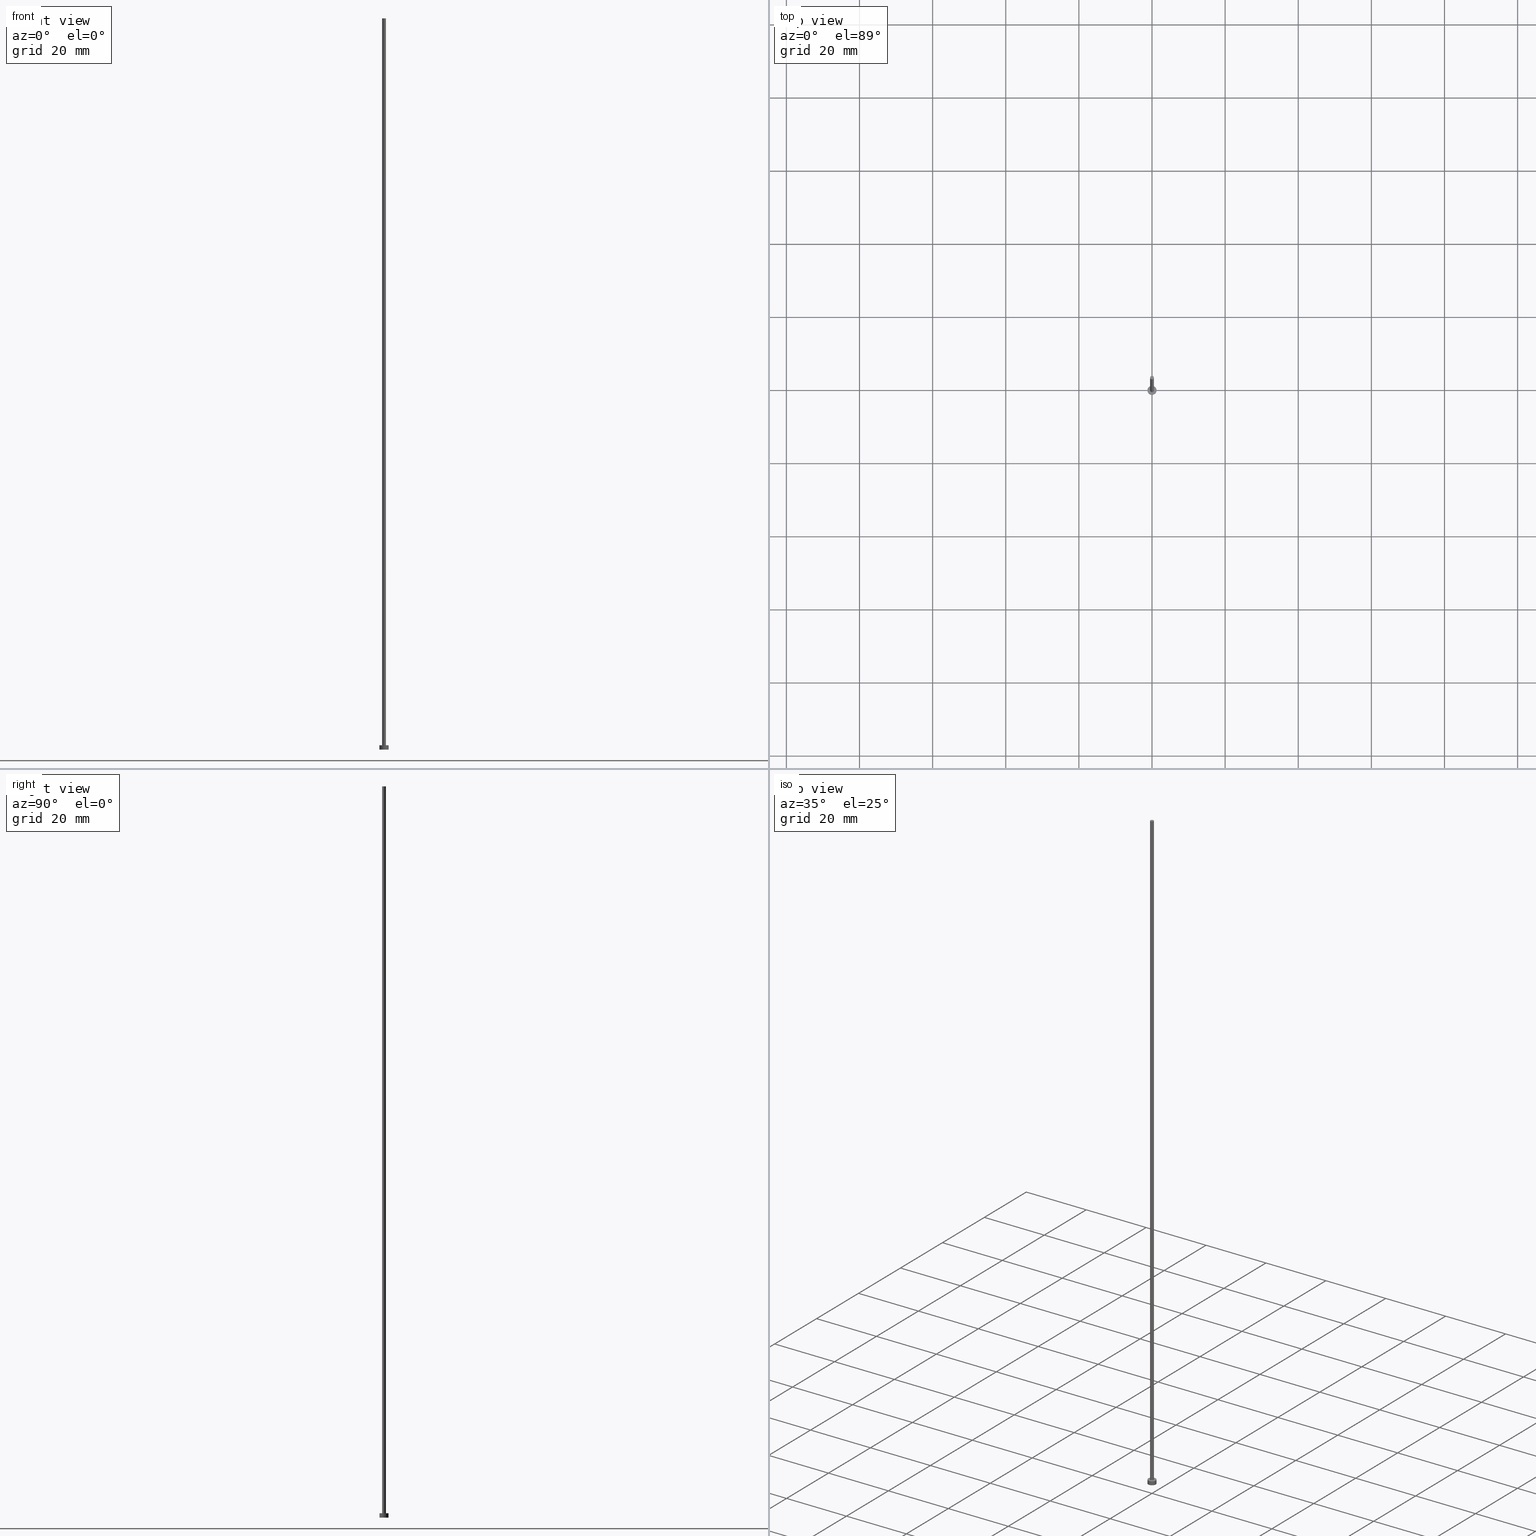
[diagram: canonical four-view strip — front | top / right | iso, engineering-drawing reading convention]
A machine part, canonical four-view strip (front | top / right | iso — engineering-drawing reading convention). The complete STEP part file that produces these views, byte-faithful:
ISO-10303-21;
HEADER;
FILE_DESCRIPTION (( 'STEP AP203' ),
    '1' );
FILE_NAME ('2827.STEP',
    '2026-02-06T12:43:46',
    ( '' ),
    ( '' ),
    'SwSTEP 2.0',
    'SolidWorks 2019',
    '' );
FILE_SCHEMA (( 'CONFIG_CONTROL_DESIGN' ));
ENDSEC;

DATA;
#1 = DIRECTION ( 'NONE',  ( 0.000000000000000000, 0.000000000000000000, 1.000000000000000000 ) ) ;
#2 = PRODUCT_DEFINITION_FORMATION_WITH_SPECIFIED_SOURCE ( 'LIBOVOLN�', '', #125, .NOT_KNOWN. ) ;
#3 = AXIS2_PLACEMENT_3D ( 'NONE', #91, #254, #193 ) ;
#4 = CARTESIAN_POINT ( 'NONE',  ( -1.250000000000000000, 0.000000000000000000, 1.199999999999999956 ) ) ;
#5 = APPROVAL_STATUS ( 'not_yet_approved' ) ;
#6 = ORIENTED_EDGE ( 'NONE', *, *, #169, .T. ) ;
#7 = DATE_AND_TIME ( #102, #195 ) ;
#8 = DATE_AND_TIME ( #158, #22 ) ;
#9 = CARTESIAN_POINT ( 'NONE',  ( -0.5000000000000000000, 0.000000000000000000, 1.199999999999999956 ) ) ;
#10 = AXIS2_PLACEMENT_3D ( 'NONE', #66, #186, #14 ) ;
#11 = AXIS2_PLACEMENT_3D ( 'NONE', #35, #34, #15 ) ;
#12 =( LENGTH_UNIT ( ) NAMED_UNIT ( * ) SI_UNIT ( .MILLI., .METRE. ) );
#13 = CARTESIAN_POINT ( 'NONE',  ( 0.000000000000000000, 0.000000000000000000, 200.0000000000000000 ) ) ;
#14 = DIRECTION ( 'NONE',  ( 1.000000000000000000, 0.000000000000000000, 0.000000000000000000 ) ) ;
#15 = DIRECTION ( 'NONE',  ( -1.000000000000000000, 0.000000000000000000, 0.000000000000000000 ) ) ;
#16 = DIRECTION ( 'NONE',  ( 0.000000000000000000, 0.000000000000000000, 1.000000000000000000 ) ) ;
#17 = CARTESIAN_POINT ( 'NONE',  ( 0.000000000000000000, 0.000000000000000000, 1.199999999999999956 ) ) ;
#18 = CARTESIAN_POINT ( 'NONE',  ( 0.000000000000000000, 0.000000000000000000, 200.0000000000000000 ) ) ;
#19 = VERTEX_POINT ( 'NONE', #30 ) ;
#20 = PERSON_AND_ORGANIZATION ( #111, #252 ) ;
#21 = VERTEX_POINT ( 'NONE', #229 ) ;
#22 = LOCAL_TIME ( 13, 43, 46.00000000000000000, #42 ) ;
#23 = PERSON_AND_ORGANIZATION_ROLE ( 'classification_officer' ) ;
#24 = ADVANCED_FACE ( 'NONE', ( #72 ), #33, .T. ) ;
#25 = CARTESIAN_POINT ( 'NONE',  ( 0.000000000000000000, 0.000000000000000000, 0.000000000000000000 ) ) ;
#26 = LOCAL_TIME ( 13, 43, 46.00000000000000000, #178 ) ;
#27 = DIRECTION ( 'NONE',  ( -0.000000000000000000, -0.000000000000000000, -1.000000000000000000 ) ) ;
#28 = AXIS2_PLACEMENT_3D ( 'NONE', #18, #133, #189 ) ;
#29 = EDGE_CURVE ( 'NONE', #80, #211, #153, .T. ) ;
#30 = CARTESIAN_POINT ( 'NONE',  ( 0.5000000000000000000, 6.123233995736766036E-17, 200.0000000000000000 ) ) ;
#31 = APPROVAL ( #5, 'NEUR�EN�' ) ;
#32 = CARTESIAN_POINT ( 'NONE',  ( -0.5000000000000000000, 0.000000000000000000, 200.0000000000000000 ) ) ;
#33 = CYLINDRICAL_SURFACE ( 'NONE', #28, 0.5000000000000000000 ) ;
#34 = DIRECTION ( 'NONE',  ( -0.000000000000000000, -0.000000000000000000, -1.000000000000000000 ) ) ;
#35 = CARTESIAN_POINT ( 'NONE',  ( 0.000000000000000000, 0.000000000000000000, 1.199999999999999956 ) ) ;
#36 = VECTOR ( 'NONE', #27, 1000.000000000000000 ) ;
#37 = CC_DESIGN_DATE_AND_TIME_ASSIGNMENT ( #8, #46, ( #120 ) ) ;
#38 = APPROVAL_DATE_TIME ( #242, #205 ) ;
#39 = VECTOR ( 'NONE', #232, 1000.000000000000000 ) ;
#40 = VERTEX_POINT ( 'NONE', #154 ) ;
#41 = PERSON_AND_ORGANIZATION ( #111, #252 ) ;
#42 = COORDINATED_UNIVERSAL_TIME_OFFSET ( 1, 0, .AHEAD. ) ;
#43 = ADVANCED_FACE ( 'NONE', ( #93 ), #55, .T. ) ;
#44 = ORIENTED_EDGE ( 'NONE', *, *, #202, .F. ) ;
#45 = AXIS2_PLACEMENT_3D ( 'NONE', #25, #107, #144 ) ;
#46 = DATE_TIME_ROLE ( 'creation_date' ) ;
#47 = DIRECTION ( 'NONE',  ( 0.000000000000000000, 0.000000000000000000, 1.000000000000000000 ) ) ;
#48 = MANIFOLD_SOLID_BREP ( 'P�idat vysunut�m3', #53 ) ;
#49 = APPLICATION_PROTOCOL_DEFINITION ( 'international standard', 'config_control_design', 1994, #83 ) ;
#50 = DIRECTION ( 'NONE',  ( 1.000000000000000000, 0.000000000000000000, 0.000000000000000000 ) ) ;
#51 = CC_DESIGN_APPROVAL ( #103, ( #120 ) ) ;
#52 = VECTOR ( 'NONE', #146, 1000.000000000000000 ) ;
#53 = CLOSED_SHELL ( 'NONE', ( #43, #152, #97, #69, #181, #24, #235 ) ) ;
#54 = ORIENTED_EDGE ( 'NONE', *, *, #29, .F. ) ;
#55 = CYLINDRICAL_SURFACE ( 'NONE', #3, 0.5000000000000000000 ) ;
#56 = FACE_OUTER_BOUND ( 'NONE', #212, .T. ) ;
#57 = FACE_OUTER_BOUND ( 'NONE', #63, .T. ) ;
#58 = EDGE_LOOP ( 'NONE', ( #159, #44, #114, #98 ) ) ;
#59 = APPROVAL_DATE_TIME ( #163, #31 ) ;
#60 = ORIENTED_EDGE ( 'NONE', *, *, #198, .T. ) ;
#61 = VERTEX_POINT ( 'NONE', #191 ) ;
#62 = PERSON_AND_ORGANIZATION_ROLE ( 'creator' ) ;
#63 = EDGE_LOOP ( 'NONE', ( #196, #161, #116, #157 ) ) ;
#64 = AXIS2_PLACEMENT_3D ( 'NONE', #108, #1, #230 ) ;
#65 = PERSON_AND_ORGANIZATION ( #111, #252 ) ;
#66 = CARTESIAN_POINT ( 'NONE',  ( 0.000000000000000000, 0.000000000000000000, 0.000000000000000000 ) ) ;
#67 = AXIS2_PLACEMENT_3D ( 'NONE', #226, #47, #50 ) ;
#68 = DIRECTION ( 'NONE',  ( 0.000000000000000000, 0.000000000000000000, 1.000000000000000000 ) ) ;
#69 = ADVANCED_FACE ( 'NONE', ( #75, #215 ), #132, .T. ) ;
#70 = DIRECTION ( 'NONE',  ( 0.000000000000000000, 0.000000000000000000, 1.000000000000000000 ) ) ;
#71 = DIRECTION ( 'NONE',  ( 0.000000000000000000, 0.000000000000000000, 1.000000000000000000 ) ) ;
#72 = FACE_OUTER_BOUND ( 'NONE', #58, .T. ) ;
#73 = ORIENTED_EDGE ( 'NONE', *, *, #250, .F. ) ;
#74 = CC_DESIGN_PERSON_AND_ORGANIZATION_ASSIGNMENT ( #65, #221, ( #120 ) ) ;
#75 = FACE_BOUND ( 'NONE', #222, .T. ) ;
#76 = COORDINATED_UNIVERSAL_TIME_OFFSET ( 1, 0, .AHEAD. ) ;
#77 = ORIENTED_EDGE ( 'NONE', *, *, #244, .F. ) ;
#78 = CC_DESIGN_PERSON_AND_ORGANIZATION_ASSIGNMENT ( #41, #23, ( #201 ) ) ;
#79 = PERSON_AND_ORGANIZATION ( #111, #252 ) ;
#80 = VERTEX_POINT ( 'NONE', #32 ) ;
#81 = PERSON_AND_ORGANIZATION ( #111, #252 ) ;
#82 = ORIENTED_EDGE ( 'NONE', *, *, #156, .F. ) ;
#83 = APPLICATION_CONTEXT ( 'configuration controlled 3d designs of mechanical parts and assemblies' ) ;
#84 = PERSON_AND_ORGANIZATION_ROLE ( 'design_owner' ) ;
#85 = AXIS2_PLACEMENT_3D ( 'NONE', #110, #231, #194 ) ;
#86 =( NAMED_UNIT ( * ) PLANE_ANGLE_UNIT ( ) SI_UNIT ( $, .RADIAN. ) );
#87 = PLANE ( 'NONE',  #176 ) ;
#88 = FACE_OUTER_BOUND ( 'NONE', #112, .T. ) ;
#89 = DIRECTION ( 'NONE',  ( 1.000000000000000000, 0.000000000000000000, 0.000000000000000000 ) ) ;
#90 = VECTOR ( 'NONE', #174, 1000.000000000000000 ) ;
#91 = CARTESIAN_POINT ( 'NONE',  ( 0.000000000000000000, 0.000000000000000000, 200.0000000000000000 ) ) ;
#92 = CARTESIAN_POINT ( 'NONE',  ( -0.5000000000000000000, 0.000000000000000000, 200.0000000000000000 ) ) ;
#93 = FACE_OUTER_BOUND ( 'NONE', #129, .T. ) ;
#94 = LINE ( 'NONE', #4, #39 ) ;
#95 = CIRCLE ( 'NONE', #243, 1.250000000000000000 ) ;
#96 = ORIENTED_EDGE ( 'NONE', *, *, #244, .T. ) ;
#97 = ADVANCED_FACE ( 'NONE', ( #56 ), #190, .T. ) ;
#98 = ORIENTED_EDGE ( 'NONE', *, *, #156, .T. ) ;
#99 = APPROVAL_ROLE ( '' ) ;
#100 = EDGE_LOOP ( 'NONE', ( #6, #60 ) ) ;
#101 = PERSON_AND_ORGANIZATION ( #111, #252 ) ;
#102 = CALENDAR_DATE ( 2026, 6, 2 ) ;
#103 = APPROVAL ( #216, 'NEUR�EN�' ) ;
#104 = CARTESIAN_POINT ( 'NONE',  ( 0.000000000000000000, 0.000000000000000000, 1.199999999999999956 ) ) ;
#105 = CIRCLE ( 'NONE', #167, 0.5000000000000000000 ) ;
#106 = PRODUCT_RELATED_PRODUCT_CATEGORY ( 'detail', '', ( #125 ) ) ;
#107 = DIRECTION ( 'NONE',  ( 0.000000000000000000, 0.000000000000000000, 1.000000000000000000 ) ) ;
#108 = CARTESIAN_POINT ( 'NONE',  ( 0.000000000000000000, 0.000000000000000000, 1.199999999999999956 ) ) ;
#109 = CARTESIAN_POINT ( 'NONE',  ( 0.000000000000000000, 0.000000000000000000, 0.000000000000000000 ) ) ;
#110 = CARTESIAN_POINT ( 'NONE',  ( 0.000000000000000000, 0.000000000000000000, 1.199999999999999956 ) ) ;
#111 = PERSON ( 'NEUR�EN�', 'NEUR�EN�', 'NEUR�EN�', ('NEUR�EN�'), ('NEUR�EN�'), ('NEUR�EN�') ) ;
#112 = EDGE_LOOP ( 'NONE', ( #164, #96 ) ) ;
#113 = SHAPE_DEFINITION_REPRESENTATION ( #209, #166 ) ;
#114 = ORIENTED_EDGE ( 'NONE', *, *, #29, .T. ) ;
#115 = COORDINATED_UNIVERSAL_TIME_OFFSET ( 1, 0, .AHEAD. ) ;
#116 = ORIENTED_EDGE ( 'NONE', *, *, #134, .T. ) ;
#117 = CC_DESIGN_SECURITY_CLASSIFICATION ( #201, ( #2 ) ) ;
#118 = AXIS2_PLACEMENT_3D ( 'NONE', #109, #71, #151 ) ;
#119 = APPROVAL_ROLE ( '' ) ;
#120 = PRODUCT_DEFINITION ( 'NEZN�M�', '', #2, #148 ) ;
#121 = PERSON_AND_ORGANIZATION_ROLE ( 'design_supplier' ) ;
#122 = DIRECTION ( 'NONE',  ( 0.000000000000000000, 0.000000000000000000, 1.000000000000000000 ) ) ;
#123 = CC_DESIGN_PERSON_AND_ORGANIZATION_ASSIGNMENT ( #142, #121, ( #2 ) ) ;
#124 = UNCERTAINTY_MEASURE_WITH_UNIT (LENGTH_MEASURE( 1.000000000000000082E-05 ), #12, 'distance_accuracy_value', 'NONE');
#125 = PRODUCT ( '2827', '2827', '', ( #197 ) ) ;
#126 =( NAMED_UNIT ( * ) SI_UNIT ( $, .STERADIAN. ) SOLID_ANGLE_UNIT ( ) );
#127 = EDGE_CURVE ( 'NONE', #21, #211, #253, .T. ) ;
#128 = CARTESIAN_POINT ( 'NONE',  ( -1.250000000000000000, 0.000000000000000000, 0.000000000000000000 ) ) ;
#129 = EDGE_LOOP ( 'NONE', ( #77, #138, #218, #54 ) ) ;
#130 = APPROVAL_PERSON_ORGANIZATION ( #223, #103, #233 ) ;
#131 = DIRECTION ( 'NONE',  ( -1.000000000000000000, 0.000000000000000000, 0.000000000000000000 ) ) ;
#132 = PLANE ( 'NONE',  #64 ) ;
#133 = DIRECTION ( 'NONE',  ( -0.000000000000000000, -0.000000000000000000, -1.000000000000000000 ) ) ;
#134 = EDGE_CURVE ( 'NONE', #40, #179, #173, .T. ) ;
#135 = APPROVAL_STATUS ( 'not_yet_approved' ) ;
#136 = LOCAL_TIME ( 13, 43, 46.00000000000000000, #137 ) ;
#137 = COORDINATED_UNIVERSAL_TIME_OFFSET ( 1, 0, .AHEAD. ) ;
#138 = ORIENTED_EDGE ( 'NONE', *, *, #247, .T. ) ;
#139 = DATE_TIME_ROLE ( 'classification_date' ) ;
#140 = LOCAL_TIME ( 13, 43, 46.00000000000000000, #76 ) ;
#141 = CIRCLE ( 'NONE', #150, 1.250000000000000000 ) ;
#142 = PERSON_AND_ORGANIZATION ( #111, #252 ) ;
#143 = EDGE_CURVE ( 'NONE', #61, #179, #94, .T. ) ;
#144 = DIRECTION ( 'NONE',  ( 1.000000000000000000, 0.000000000000000000, -0.000000000000000000 ) ) ;
#145 = APPROVAL_PERSON_ORGANIZATION ( #101, #31, #99 ) ;
#146 = DIRECTION ( 'NONE',  ( -0.000000000000000000, -0.000000000000000000, -1.000000000000000000 ) ) ;
#147 = DIRECTION ( 'NONE',  ( 0.000000000000000000, 0.000000000000000000, 1.000000000000000000 ) ) ;
#148 = DESIGN_CONTEXT ( 'detailed design', #192, 'design' ) ;
#149 = DIRECTION ( 'NONE',  ( 1.000000000000000000, 0.000000000000000000, 0.000000000000000000 ) ) ;
#150 = AXIS2_PLACEMENT_3D ( 'NONE', #171, #70, #149 ) ;
#151 = DIRECTION ( 'NONE',  ( 1.000000000000000000, 0.000000000000000000, 0.000000000000000000 ) ) ;
#152 = ADVANCED_FACE ( 'NONE', ( #57 ), #213, .T. ) ;
#153 = LINE ( 'NONE', #92, #90 ) ;
#154 = CARTESIAN_POINT ( 'NONE',  ( 1.250000000000000000, 1.530808498934191571E-16, 0.000000000000000000 ) ) ;
#155 = AXIS2_PLACEMENT_3D ( 'NONE', #17, #16, #89 ) ;
#156 = EDGE_CURVE ( 'NONE', #211, #21, #227, .T. ) ;
#157 = ORIENTED_EDGE ( 'NONE', *, *, #143, .F. ) ;
#158 = CALENDAR_DATE ( 2026, 6, 2 ) ;
#159 = ORIENTED_EDGE ( 'NONE', *, *, #247, .F. ) ;
#160 = APPLICATION_PROTOCOL_DEFINITION ( 'international standard', 'config_control_design', 1994, #192 ) ;
#161 = ORIENTED_EDGE ( 'NONE', *, *, #250, .T. ) ;
#162 = APPROVAL_PERSON_ORGANIZATION ( #81, #205, #119 ) ;
#163 = DATE_AND_TIME ( #236, #26 ) ;
#164 = ORIENTED_EDGE ( 'NONE', *, *, #202, .T. ) ;
#165 = CC_DESIGN_DATE_AND_TIME_ASSIGNMENT ( #7, #139, ( #201 ) ) ;
#166 = ADVANCED_BREP_SHAPE_REPRESENTATION ( '2827', ( #48, #67 ), #217 ) ;
#167 = AXIS2_PLACEMENT_3D ( 'NONE', #207, #122, #248 ) ;
#168 = DIRECTION ( 'NONE',  ( 1.000000000000000000, 0.000000000000000000, 0.000000000000000000 ) ) ;
#169 = EDGE_CURVE ( 'NONE', #61, #175, #141, .T. ) ;
#170 = CARTESIAN_POINT ( 'NONE',  ( 0.5000000000000000000, 6.123233995736766036E-17, 200.0000000000000000 ) ) ;
#171 = CARTESIAN_POINT ( 'NONE',  ( 0.000000000000000000, 0.000000000000000000, 1.199999999999999956 ) ) ;
#172 = DIRECTION ( 'NONE',  ( -0.000000000000000000, -0.000000000000000000, -1.000000000000000000 ) ) ;
#173 = CIRCLE ( 'NONE', #118, 1.250000000000000000 ) ;
#174 = DIRECTION ( 'NONE',  ( -0.000000000000000000, -0.000000000000000000, -1.000000000000000000 ) ) ;
#175 = VERTEX_POINT ( 'NONE', #228 ) ;
#176 = AXIS2_PLACEMENT_3D ( 'NONE', #13, #246, #204 ) ;
#177 = ORIENTED_EDGE ( 'NONE', *, *, #169, .F. ) ;
#178 = COORDINATED_UNIVERSAL_TIME_OFFSET ( 1, 0, .AHEAD. ) ;
#179 = VERTEX_POINT ( 'NONE', #128 ) ;
#180 = ORIENTED_EDGE ( 'NONE', *, *, #208, .T. ) ;
#181 = ADVANCED_FACE ( 'NONE', ( #210 ), #245, .F. ) ;
#182 = CALENDAR_DATE ( 2026, 6, 2 ) ;
#183 = CARTESIAN_POINT ( 'NONE',  ( 1.250000000000000000, 1.530808498934191571E-16, 1.199999999999999956 ) ) ;
#184 = AXIS2_PLACEMENT_3D ( 'NONE', #185, #68, #168 ) ;
#185 = CARTESIAN_POINT ( 'NONE',  ( 0.000000000000000000, 0.000000000000000000, 200.0000000000000000 ) ) ;
#186 = DIRECTION ( 'NONE',  ( 0.000000000000000000, 0.000000000000000000, 1.000000000000000000 ) ) ;
#187 = DIRECTION ( 'NONE',  ( 1.000000000000000000, 0.000000000000000000, 0.000000000000000000 ) ) ;
#188 = CIRCLE ( 'NONE', #184, 0.5000000000000000000 ) ;
#189 = DIRECTION ( 'NONE',  ( -1.000000000000000000, 0.000000000000000000, 0.000000000000000000 ) ) ;
#190 = CYLINDRICAL_SURFACE ( 'NONE', #238, 1.250000000000000000 ) ;
#191 = CARTESIAN_POINT ( 'NONE',  ( -1.250000000000000000, 0.000000000000000000, 1.199999999999999956 ) ) ;
#192 = APPLICATION_CONTEXT ( 'configuration controlled 3d designs of mechanical parts and assemblies' ) ;
#193 = DIRECTION ( 'NONE',  ( -1.000000000000000000, 0.000000000000000000, 0.000000000000000000 ) ) ;
#194 = DIRECTION ( 'NONE',  ( 1.000000000000000000, 0.000000000000000000, 0.000000000000000000 ) ) ;
#195 = LOCAL_TIME ( 13, 43, 46.00000000000000000, #115 ) ;
#196 = ORIENTED_EDGE ( 'NONE', *, *, #198, .F. ) ;
#197 = MECHANICAL_CONTEXT ( 'NONE', #83, 'mechanical' ) ;
#198 = EDGE_CURVE ( 'NONE', #175, #61, #95, .T. ) ;
#199 = EDGE_LOOP ( 'NONE', ( #220, #234 ) ) ;
#200 = SECURITY_CLASSIFICATION_LEVEL ( 'unclassified' ) ;
#201 = SECURITY_CLASSIFICATION ( '', '', #200 ) ;
#202 = EDGE_CURVE ( 'NONE', #80, #19, #188, .T. ) ;
#203 = DATE_AND_TIME ( #240, #136 ) ;
#204 = DIRECTION ( 'NONE',  ( 1.000000000000000000, 0.000000000000000000, -0.000000000000000000 ) ) ;
#205 = APPROVAL ( #135, 'NEUR�EN�' ) ;
#206 = CC_DESIGN_APPROVAL ( #205, ( #2 ) ) ;
#207 = CARTESIAN_POINT ( 'NONE',  ( 0.000000000000000000, 0.000000000000000000, 200.0000000000000000 ) ) ;
#208 = EDGE_CURVE ( 'NONE', #179, #40, #219, .T. ) ;
#209 = PRODUCT_DEFINITION_SHAPE ( 'NONE', 'NONE',  #120 ) ;
#210 = FACE_OUTER_BOUND ( 'NONE', #199, .T. ) ;
#211 = VERTEX_POINT ( 'NONE', #9 ) ;
#212 = EDGE_LOOP ( 'NONE', ( #73, #177, #255, #180 ) ) ;
#213 = CYLINDRICAL_SURFACE ( 'NONE', #11, 1.250000000000000000 ) ;
#214 = CC_DESIGN_PERSON_AND_ORGANIZATION_ASSIGNMENT ( #79, #84, ( #125 ) ) ;
#215 = FACE_OUTER_BOUND ( 'NONE', #100, .T. ) ;
#216 = APPROVAL_STATUS ( 'not_yet_approved' ) ;
#217 =( GEOMETRIC_REPRESENTATION_CONTEXT ( 3 ) GLOBAL_UNCERTAINTY_ASSIGNED_CONTEXT ( ( #124 ) ) GLOBAL_UNIT_ASSIGNED_CONTEXT ( ( #12, #86, #126 ) ) REPRESENTATION_CONTEXT ( 'NONE', 'WORKASPACE' ) );
#218 = ORIENTED_EDGE ( 'NONE', *, *, #127, .T. ) ;
#219 = CIRCLE ( 'NONE', #10, 1.250000000000000000 ) ;
#220 = ORIENTED_EDGE ( 'NONE', *, *, #208, .F. ) ;
#221 = PERSON_AND_ORGANIZATION_ROLE ( 'creator' ) ;
#222 = EDGE_LOOP ( 'NONE', ( #82, #239 ) ) ;
#223 = PERSON_AND_ORGANIZATION ( #111, #252 ) ;
#224 = LINE ( 'NONE', #170, #52 ) ;
#225 = CC_DESIGN_PERSON_AND_ORGANIZATION_ASSIGNMENT ( #20, #62, ( #2 ) ) ;
#226 = CARTESIAN_POINT ( 'NONE',  ( 0.000000000000000000, 0.000000000000000000, 0.000000000000000000 ) ) ;
#227 = CIRCLE ( 'NONE', #155, 0.5000000000000000000 ) ;
#228 = CARTESIAN_POINT ( 'NONE',  ( 1.250000000000000000, 1.530808498934191571E-16, 1.199999999999999956 ) ) ;
#229 = CARTESIAN_POINT ( 'NONE',  ( 0.5000000000000000000, 6.123233995736766036E-17, 1.199999999999999956 ) ) ;
#230 = DIRECTION ( 'NONE',  ( 1.000000000000000000, 0.000000000000000000, -0.000000000000000000 ) ) ;
#231 = DIRECTION ( 'NONE',  ( 0.000000000000000000, 0.000000000000000000, 1.000000000000000000 ) ) ;
#232 = DIRECTION ( 'NONE',  ( -0.000000000000000000, -0.000000000000000000, -1.000000000000000000 ) ) ;
#233 = APPROVAL_ROLE ( '' ) ;
#234 = ORIENTED_EDGE ( 'NONE', *, *, #134, .F. ) ;
#235 = ADVANCED_FACE ( 'NONE', ( #88 ), #87, .T. ) ;
#236 = CALENDAR_DATE ( 2026, 6, 2 ) ;
#237 = CC_DESIGN_APPROVAL ( #31, ( #201 ) ) ;
#238 = AXIS2_PLACEMENT_3D ( 'NONE', #251, #172, #131 ) ;
#239 = ORIENTED_EDGE ( 'NONE', *, *, #127, .F. ) ;
#240 = CALENDAR_DATE ( 2026, 6, 2 ) ;
#241 = APPROVAL_DATE_TIME ( #203, #103 ) ;
#242 = DATE_AND_TIME ( #182, #140 ) ;
#243 = AXIS2_PLACEMENT_3D ( 'NONE', #104, #147, #187 ) ;
#244 = EDGE_CURVE ( 'NONE', #19, #80, #105, .T. ) ;
#245 = PLANE ( 'NONE',  #45 ) ;
#246 = DIRECTION ( 'NONE',  ( 0.000000000000000000, 0.000000000000000000, 1.000000000000000000 ) ) ;
#247 = EDGE_CURVE ( 'NONE', #19, #21, #224, .T. ) ;
#248 = DIRECTION ( 'NONE',  ( 1.000000000000000000, 0.000000000000000000, 0.000000000000000000 ) ) ;
#249 = LINE ( 'NONE', #183, #36 ) ;
#250 = EDGE_CURVE ( 'NONE', #175, #40, #249, .T. ) ;
#251 = CARTESIAN_POINT ( 'NONE',  ( 0.000000000000000000, 0.000000000000000000, 1.199999999999999956 ) ) ;
#252 = ORGANIZATION ( 'NEUR�EN�', 'NEUR�EN�', '' ) ;
#253 = CIRCLE ( 'NONE', #85, 0.5000000000000000000 ) ;
#254 = DIRECTION ( 'NONE',  ( -0.000000000000000000, -0.000000000000000000, -1.000000000000000000 ) ) ;
#255 = ORIENTED_EDGE ( 'NONE', *, *, #143, .T. ) ;
ENDSEC;
END-ISO-10303-21;
